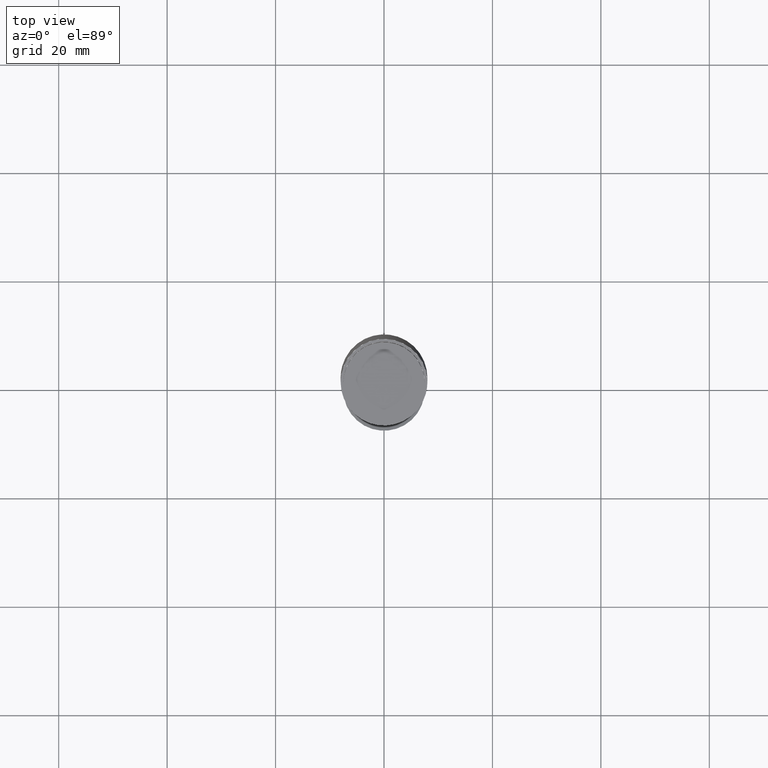
[diagram: clean part render]
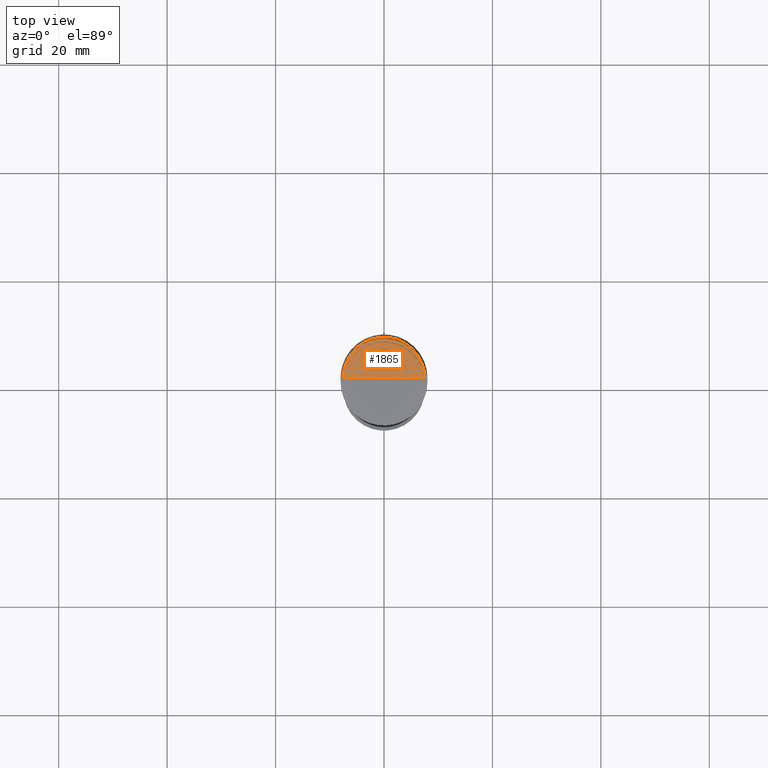
[diagram: same view with one face highlighted and labeled with its STEP entity id]
A machine part, top view. The second image highlights one B-rep face of the part: STEP entity #1865.
In plain terms, the highlighted face is a freeform B-spline surface patch.
Its self-contained STEP definition (entity closure, byte-faithful):
#1600=CARTESIAN_POINT('',(7.5,0.0,48.0));
#1601=CARTESIAN_POINT('',(7.5,7.5,48.0));
#1602=CARTESIAN_POINT('',(0.0,7.5,48.0));
#1603=CARTESIAN_POINT('',(-7.5,7.5,48.0));
#1604=CARTESIAN_POINT('',(-7.5,0.0,48.0));
#1605=CARTESIAN_POINT('',(0.0,0.0,48.0));
#1850=(
BOUNDED_SURFACE()
B_SPLINE_SURFACE(1,2,(
(#1600,#1601,#1602,#1603,#1604),
(#1605,#1605,#1605,#1605,#1605)
), .UNSPECIFIED.,.F.,.F.,.F.)
B_SPLINE_SURFACE_WITH_KNOTS((2,2),(3,2,3),(
0.0,1.0),(
0.0,0.5,1.0), .UNSPECIFIED.)
GEOMETRIC_REPRESENTATION_ITEM()
RATIONAL_B_SPLINE_SURFACE(((1.0,0.707106781187,1.0,0.707106781187,1.0),
(1.0,0.707106781187,1.0,0.707106781187,1.0)
))
REPRESENTATION_ITEM('')
SURFACE()
);
#1851=(
BOUNDED_CURVE()
B_SPLINE_CURVE(2,(#1604,#1603,#1602,#1601,#1600),.UNSPECIFIED.,.F.,.F.)
B_SPLINE_CURVE_WITH_KNOTS((3,2,3),
(0.0,0.5,1.0),.UNSPECIFIED.)
CURVE()
GEOMETRIC_REPRESENTATION_ITEM()
RATIONAL_B_SPLINE_CURVE((1.0,0.707106781187,1.0,0.707106781187,1.0))
REPRESENTATION_ITEM('')
);
#1852=(
BOUNDED_CURVE()
B_SPLINE_CURVE(1,(#1600,#1605),.UNSPECIFIED.,.F.,.F.)
B_SPLINE_CURVE_WITH_KNOTS((2,2),
(0.0,1.0),.UNSPECIFIED.)
CURVE()
GEOMETRIC_REPRESENTATION_ITEM()
RATIONAL_B_SPLINE_CURVE((1.0,1.0))
REPRESENTATION_ITEM('')
);
#1853=(
BOUNDED_CURVE()
B_SPLINE_CURVE(1,(#1605,#1604),.UNSPECIFIED.,.F.,.F.)
B_SPLINE_CURVE_WITH_KNOTS((2,2),
(0.0,1.0),.UNSPECIFIED.)
CURVE()
GEOMETRIC_REPRESENTATION_ITEM()
RATIONAL_B_SPLINE_CURVE((1.0,1.0))
REPRESENTATION_ITEM('')
);
#1854=VERTEX_POINT('',#1600);
#1855=VERTEX_POINT('',#1604);
#1856=VERTEX_POINT('',#1605);
#1857=EDGE_CURVE('',#1855,#1854,#1851,.T.);
#1858=EDGE_CURVE('',#1854,#1856,#1852,.T.);
#1859=EDGE_CURVE('',#1856,#1855,#1853,.T.);
#1860=ORIENTED_EDGE('',*,*,#1857,.T.);
#1861=ORIENTED_EDGE('',*,*,#1858,.T.);
#1862=ORIENTED_EDGE('',*,*,#1859,.T.);
#1863=EDGE_LOOP('',(#1860,#1861,#1862));
#1864=FACE_OUTER_BOUND('',#1863,.T.);
#1865=ADVANCED_FACE('',(#1864),#1850,.T.);